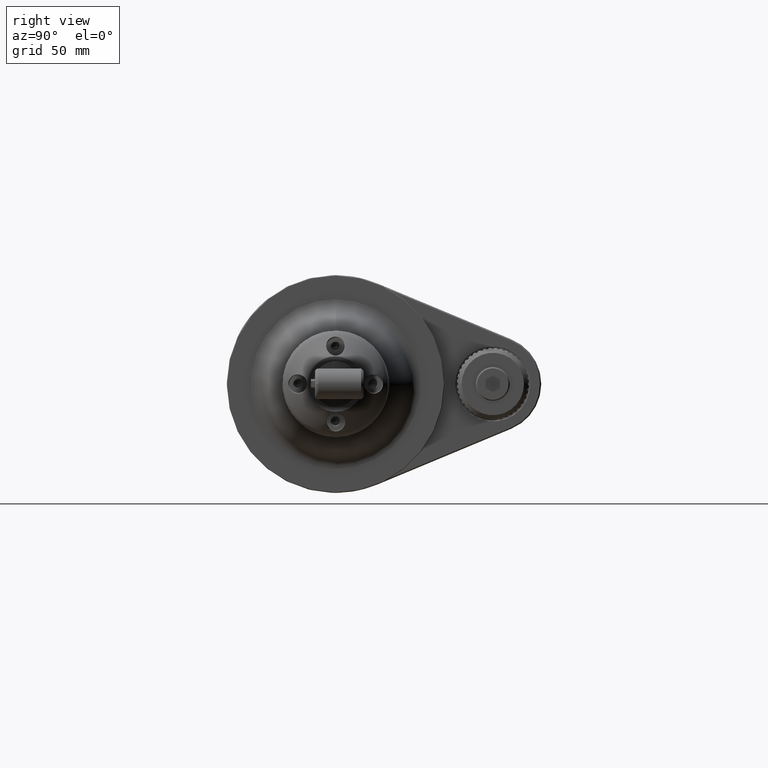
[diagram: clean part render]
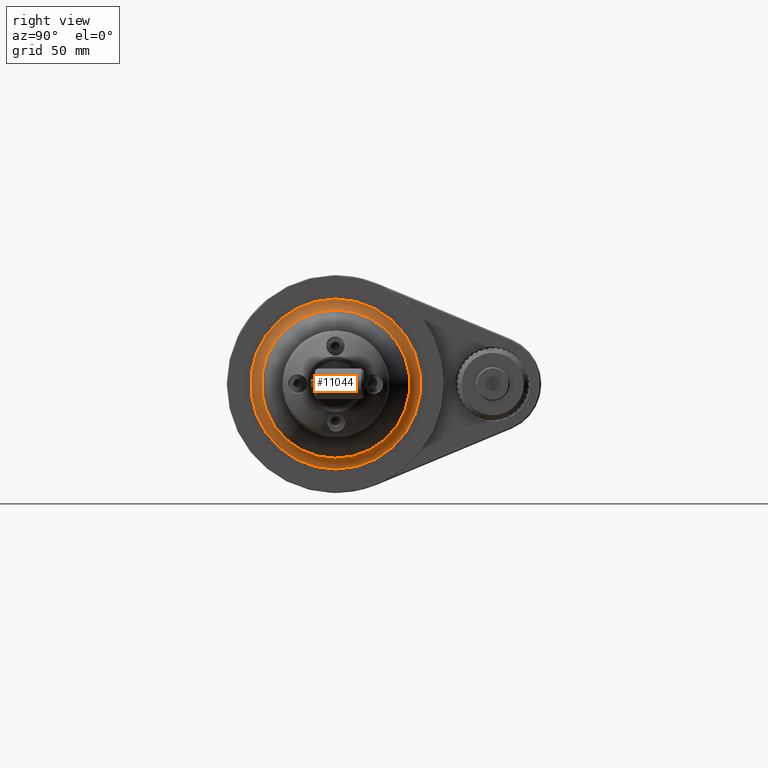
[diagram: same view with one face highlighted and labeled with its STEP entity id]
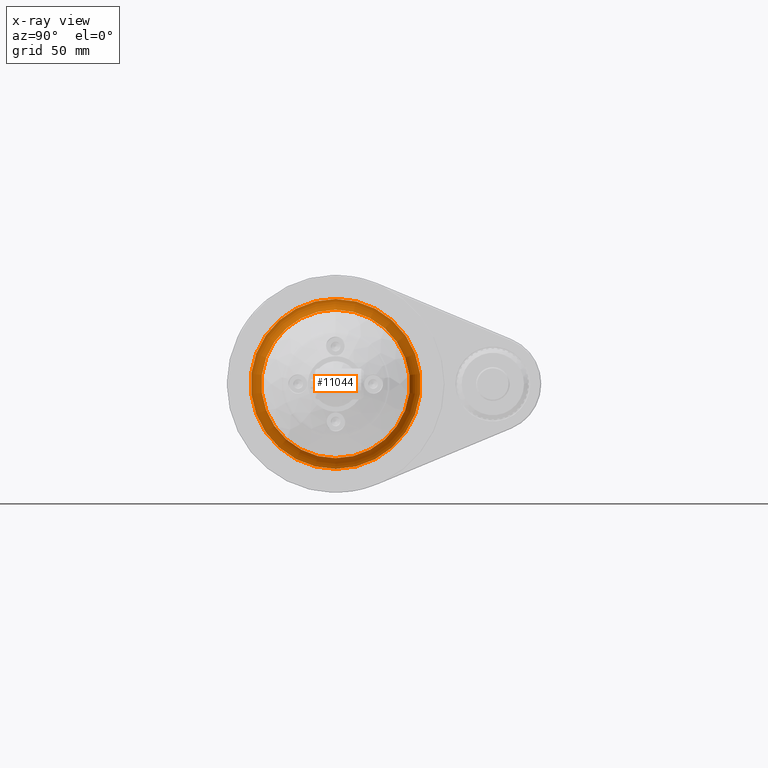
[diagram: x-ray of the same camera — body ghosted, the highlighted face saturated]
A machine part, right view. The second image highlights one B-rep face of the part: STEP entity #11044.
The next image is the same camera in x-ray: the body ghosted, the highlighted face saturated — about 0% of this face is hidden behind the body in this view.
In plain terms, the highlighted toroidal blend (fillet) surface has major radius 35.1526 mm and minor (blend) radius 5 mm.
Its self-contained STEP definition (entity closure, byte-faithful):
#113=TOROIDAL_SURFACE('',#12217,35.15260784069,5.);
#939=CIRCLE('',#12215,30.69757521975);
#940=CIRCLE('',#12216,30.69757521975);
#941=CIRCLE('',#12218,5.);
#942=CIRCLE('',#12219,35.15260784069);
#1759=FACE_OUTER_BOUND('',#2454,.T.);
#2454=EDGE_LOOP('',(#9537,#9538,#9539,#9540,#9541));
#5167=VERTEX_POINT('',#19944);
#5168=VERTEX_POINT('',#19945);
#5169=VERTEX_POINT('',#19950);
#6678=EDGE_CURVE('',#5167,#5168,#939,.T.);
#6679=EDGE_CURVE('',#5168,#5167,#940,.T.);
#6681=EDGE_CURVE('',#5168,#5169,#941,.T.);
#6682=EDGE_CURVE('',#5169,#5169,#942,.T.);
#9537=ORIENTED_EDGE('',*,*,#6678,.F.);
#9538=ORIENTED_EDGE('',*,*,#6679,.F.);
#9539=ORIENTED_EDGE('',*,*,#6681,.T.);
#9540=ORIENTED_EDGE('',*,*,#6682,.T.);
#9541=ORIENTED_EDGE('',*,*,#6681,.F.);
#11044=ADVANCED_FACE('',(#1759),#113,.F.);
#12215=AXIS2_PLACEMENT_3D('',#19946,#15100,#15101);
#12216=AXIS2_PLACEMENT_3D('',#19947,#15102,#15103);
#12217=AXIS2_PLACEMENT_3D('',#19949,#15105,#15106);
#12218=AXIS2_PLACEMENT_3D('',#19951,#15107,#15108);
#12219=AXIS2_PLACEMENT_3D('',#19952,#15109,#15110);
#15100=DIRECTION('center_axis',(0.,1.,0.));
#15101=DIRECTION('ref_axis',(1.,0.,0.));
#15102=DIRECTION('center_axis',(0.,1.,0.));
#15103=DIRECTION('ref_axis',(1.,0.,0.));
#15105=DIRECTION('center_axis',(0.,1.,0.));
#15106=DIRECTION('ref_axis',(0.999999759886687,0.,0.000692983815317891));
#15107=DIRECTION('center_axis',(0.000692983815317769,0.,-0.999999759886687));
#15108=DIRECTION('ref_axis',(-0.999999759886687,0.,-0.000692983815317768));
#15109=DIRECTION('center_axis',(0.,1.,0.));
#15110=DIRECTION('ref_axis',(1.,0.,0.));
#19944=CARTESIAN_POINT('',(30.69757521975,38.9300475013,0.));
#19945=CARTESIAN_POINT('',(-30.6975678488535,38.9300475013,-0.0212729227967865));
#19946=CARTESIAN_POINT('Origin',(0.,38.9300475013,0.));
#19947=CARTESIAN_POINT('Origin',(0.,38.9300475013,0.));
#19949=CARTESIAN_POINT('Origin',(0.,41.2,0.));
#19950=CARTESIAN_POINT('',(-35.1525994000809,36.2,-0.0243601882998107));
#19951=CARTESIAN_POINT('Origin',(-35.1525994000809,41.2,-0.0243601882998107));
#19952=CARTESIAN_POINT('Origin',(0.,36.2,0.));